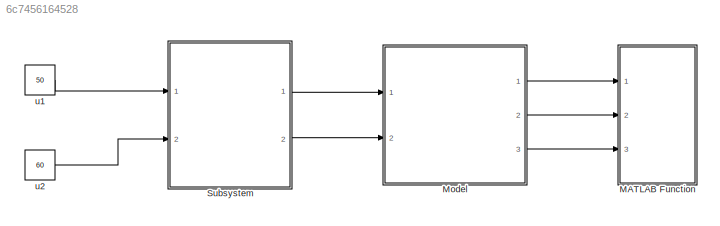
MODEL slx_6c7456164528
KIND model
CONFIG AbsTol = auto
CONFIG EnableMultiTasking = off
CONFIG FixedStep = 0.1
CONFIG MaxStep = auto
CONFIG MinStep = 0.1
CONFIG RelTol = 1e-3
CONFIG SampleTimeConstraint = Unconstrained
CONFIG Solver = FixedStepAuto
CONFIG SolverName = FixedStepAuto
CONFIG StartTime = 0.0
CONFIG StopTime = 5
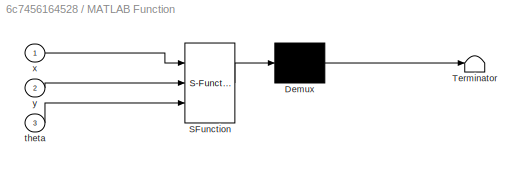
BLOCK [SubSystem] MATLAB Function
  ErrorFcn = Stateflow.Translate.translate
  PermitHierarchicalResolution = ExplicitOnly
  Ports = [3]
  RequestExecContextInheritance = off
  SFBlockType = MATLAB Function
  TreatAsAtomicUnit = on
BLOCK [Demux] MATLAB Function/ Demux 
  Outputs = 1
  Ports = [1, 1]
BLOCK [S-Function] MATLAB Function/ SFunction 
  EnableBusSupport = on
  FunctionName = sf_sfun
  PortCounts = [3 1]
  Ports = [3, 1]
  SFcnIsStateOwnerBlock = off
  SFunctionDeploymentMode = off
  Tag = Stateflow S-Function 2
BLOCK [Terminator] MATLAB Function/ Terminator 
BLOCK [Inport] MATLAB Function/theta
  IconDisplay = Port number
  Port = 3
BLOCK [Inport] MATLAB Function/x
  IconDisplay = Port number
BLOCK [Inport] MATLAB Function/y
  IconDisplay = Port number
  Port = 2
BLOCK [ModelReference] Model
  ModelNameDialog = TwoWheelModel.slx
  ModelReferenceVersion = 1.3
  Ports = [2, 3]
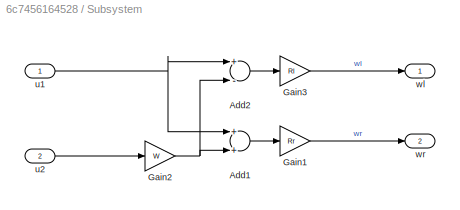
BLOCK [SubSystem] Subsystem
  Ports = [2, 2]
  RequestExecContextInheritance = off
  TreatAsAtomicUnit = on
BLOCK [Sum] Subsystem/Add1
  InputSameDT = off
  OutDataTypeStr = Inherit: Inherit via internal rule
  Ports = [2, 1]
  SaturateOnIntegerOverflow = off
BLOCK [Sum] Subsystem/Add2
  InputSameDT = off
  Inputs = +-
  OutDataTypeStr = Inherit: Inherit via internal rule
  Ports = [2, 1]
  SaturateOnIntegerOverflow = off
BLOCK [Gain] Subsystem/Gain1
  Gain = Rr
  OutDataTypeStr = Inherit: Inherit via internal rule
  ParamDataTypeStr = Inherit: Inherit via internal rule
  SaturateOnIntegerOverflow = off
BLOCK [Gain] Subsystem/Gain2
  Gain = W
  OutDataTypeStr = Inherit: Inherit via internal rule
  ParamDataTypeStr = Inherit: Inherit via internal rule
  SaturateOnIntegerOverflow = off
BLOCK [Gain] Subsystem/Gain3
  Gain = Rl
  OutDataTypeStr = Inherit: Inherit via internal rule
  ParamDataTypeStr = Inherit: Inherit via internal rule
  SaturateOnIntegerOverflow = off
BLOCK [Inport] Subsystem/u1
  IconDisplay = Port number
BLOCK [Inport] Subsystem/u2
  IconDisplay = Port number
  Port = 2
BLOCK [Outport] Subsystem/wl
  IconDisplay = Port number
BLOCK [Outport] Subsystem/wr
  IconDisplay = Port number
  Port = 2
BLOCK [Constant] u1
  Value = 50
BLOCK [Constant] u2
  Value = 60
LINE Model:1 -> MATLAB Function:1
LINE Model:2 -> MATLAB Function:2
LINE Model:3 -> MATLAB Function:3
LINE Subsystem/Add1:1 -> Subsystem/Gain1:1
LINE Subsystem/Add2:1 -> Subsystem/Gain3:1
LINE Subsystem/Gain1:1 -> Subsystem/wr:1
NET Subsystem/Gain2:1 -> Subsystem/Add1:2, Subsystem/Add2:2
LINE Subsystem/Gain3:1 -> Subsystem/wl:1
NET Subsystem/u1:1 -> Subsystem/Add1:1, Subsystem/Add2:1
LINE Subsystem/u2:1 -> Subsystem/Gain2:1
LINE Subsystem:1 -> Model:1
LINE Subsystem:2 -> Model:2
LINE u1:1 -> Subsystem:1
LINE u2:1 -> Subsystem:2
note: NET lines group one-source signal fan-out (src -> all destinations, sorted); 1:1 wires keep LINE
CHART MATLAB Function states=1 transitions=1
  STATE_LABEL 'eML_blk_kernel()'
  STATE_LABEL "SCRIPT:\nfunction fcn(x, y, theta)\n    coder.extrinsic('evalin', 'plot', 'setfield', 'redraw');\n    TwoWheel = evalin('base','TwoWheel'); \n    fig = evalin('base','fig'); %ベースワークスペースのハンドル取得\n    \n    theta_deg = theta * 180 /pi;\n    TwoWheel = setfield(TwoWheel, 'X', x);\n    TwoWheel = setfield(TwoWheel, 'Y', y);\n    TwoWheel = setfield(TwoWheel, 'Theta_deg', theta_deg);\n    \n    redraw(TwoWheel);\n ...<+37ch>"
